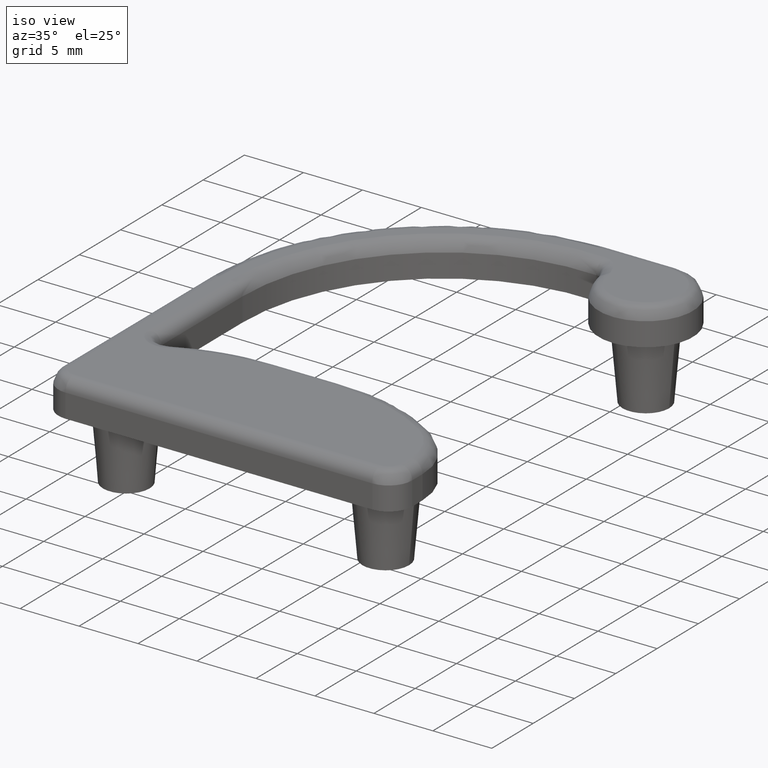
[diagram: clean part render]
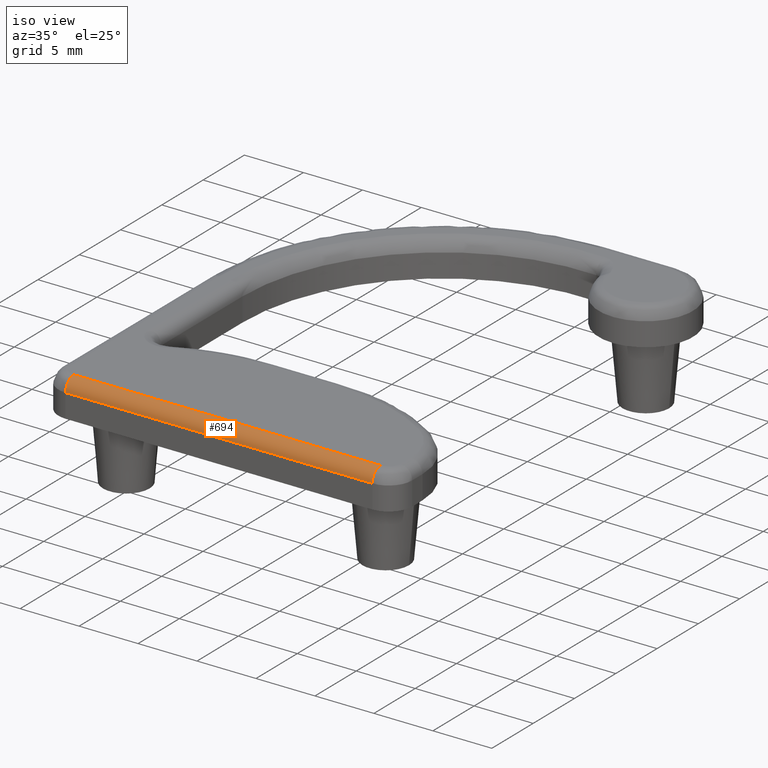
[diagram: same view with one face highlighted and labeled with its STEP entity id]
A machine part, iso view. The second image highlights one B-rep face of the part: STEP entity #694.
In plain terms, the highlighted cylindrical surface (edge-blend (fillet) strip) has radius 1 mm, axis along (-1, 0, 0).
Its self-contained STEP definition (entity closure, byte-faithful):
#31=CYLINDRICAL_SURFACE('',#781,1.);
#88=FACE_OUTER_BOUND('',#139,.T.);
#139=EDGE_LOOP('',(#590,#591,#592,#593));
#211=CIRCLE('',#780,1.);
#212=CIRCLE('',#782,1.);
#242=LINE('',#1270,#277);
#261=LINE('',#1324,#296);
#277=VECTOR('',#889,26.0000004395446);
#296=VECTOR('',#952,26.0000004395446);
#338=VERTEX_POINT('',#1267);
#339=VERTEX_POINT('',#1269);
#351=VERTEX_POINT('',#1318);
#352=VERTEX_POINT('',#1322);
#404=EDGE_CURVE('',#339,#338,#242,.T.);
#432=EDGE_CURVE('',#352,#351,#261,.T.);
#441=EDGE_CURVE('',#352,#339,#211,.T.);
#442=EDGE_CURVE('',#351,#338,#212,.T.);
#590=ORIENTED_EDGE('',*,*,#441,.T.);
#591=ORIENTED_EDGE('',*,*,#404,.T.);
#592=ORIENTED_EDGE('',*,*,#442,.F.);
#593=ORIENTED_EDGE('',*,*,#432,.F.);
#694=ADVANCED_FACE('',(#88),#31,.T.);
#780=AXIS2_PLACEMENT_3D('',#1438,#975,#976);
#781=AXIS2_PLACEMENT_3D('',#1439,#977,#978);
#782=AXIS2_PLACEMENT_3D('',#1440,#979,#980);
#889=DIRECTION('',(-1.,0.,0.));
#952=DIRECTION('',(-1.,0.,0.));
#975=DIRECTION('center_axis',(-1.,0.,0.));
#976=DIRECTION('ref_axis',(0.,-1.,0.));
#977=DIRECTION('center_axis',(-1.,0.,0.));
#978=DIRECTION('ref_axis',(0.,-1.,0.));
#979=DIRECTION('center_axis',(-1.,0.,0.));
#980=DIRECTION('ref_axis',(0.,-1.,0.));
#1267=CARTESIAN_POINT('',(-2.0000004395452,-3.50205391412805,2.99999999999989));
#1269=CARTESIAN_POINT('',(23.9999999999994,-3.50205391412805,3.00000000000136));
#1270=CARTESIAN_POINT('',(23.9999999999994,-3.50205391412817,3.00000000000136));
#1318=CARTESIAN_POINT('',(-2.00000043954512,-4.50205391412806,1.99999999999989));
#1322=CARTESIAN_POINT('',(23.9999999999995,-4.50205391412806,2.00000000000136));
#1324=CARTESIAN_POINT('',(23.9999999999995,-4.50205391412817,2.00000000000136));
#1438=CARTESIAN_POINT('Origin',(23.9999999999995,-3.50205391412817,2.00000000000136));
#1439=CARTESIAN_POINT('Origin',(23.9999999999995,-3.50205391412817,2.00000000000136));
#1440=CARTESIAN_POINT('Origin',(-2.00000043954512,-3.50205391412783,1.99999999999989));